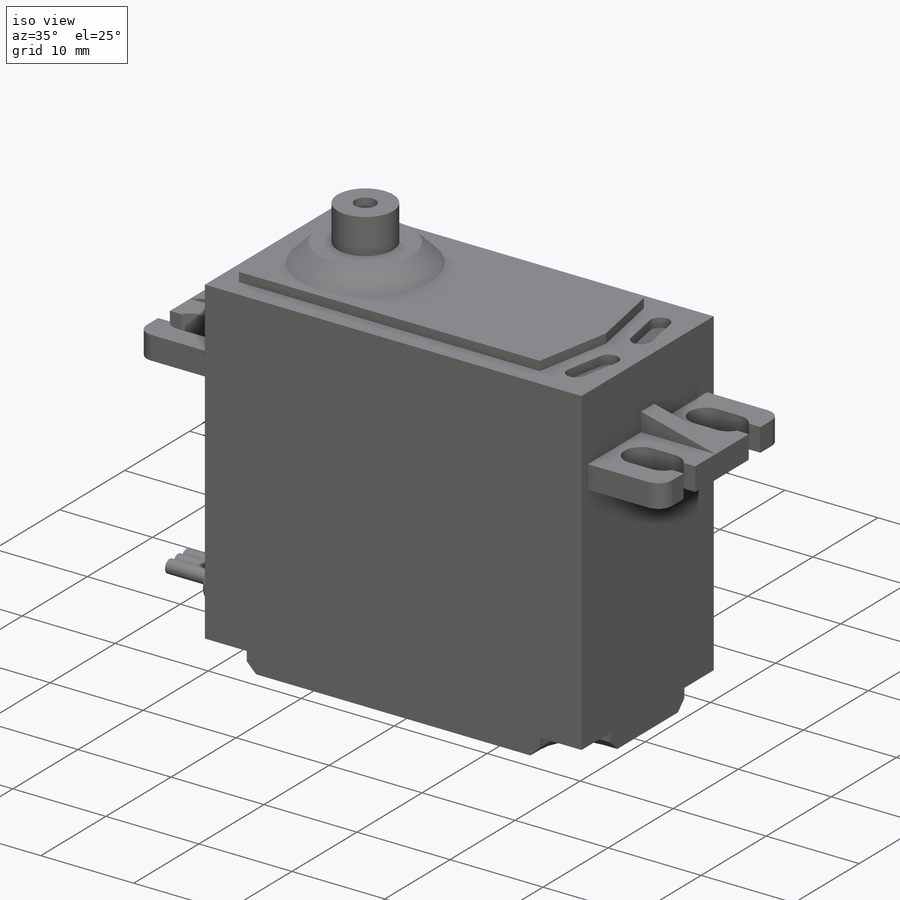
[diagram: iso view]
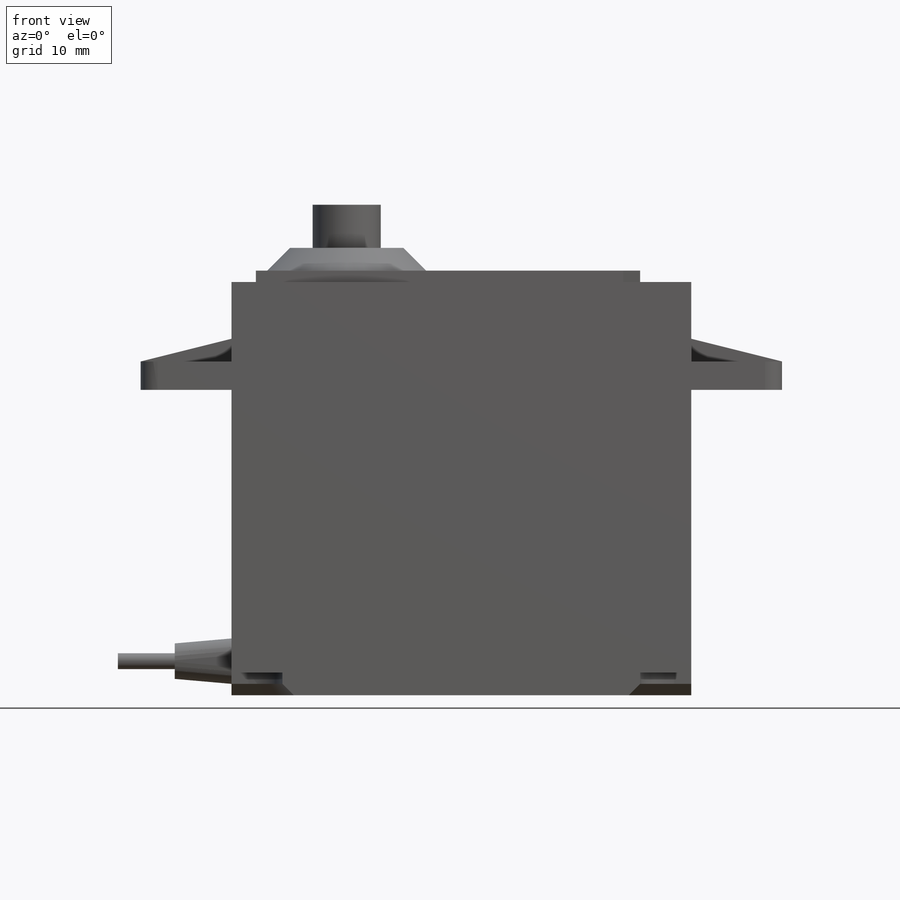
[diagram: front view]
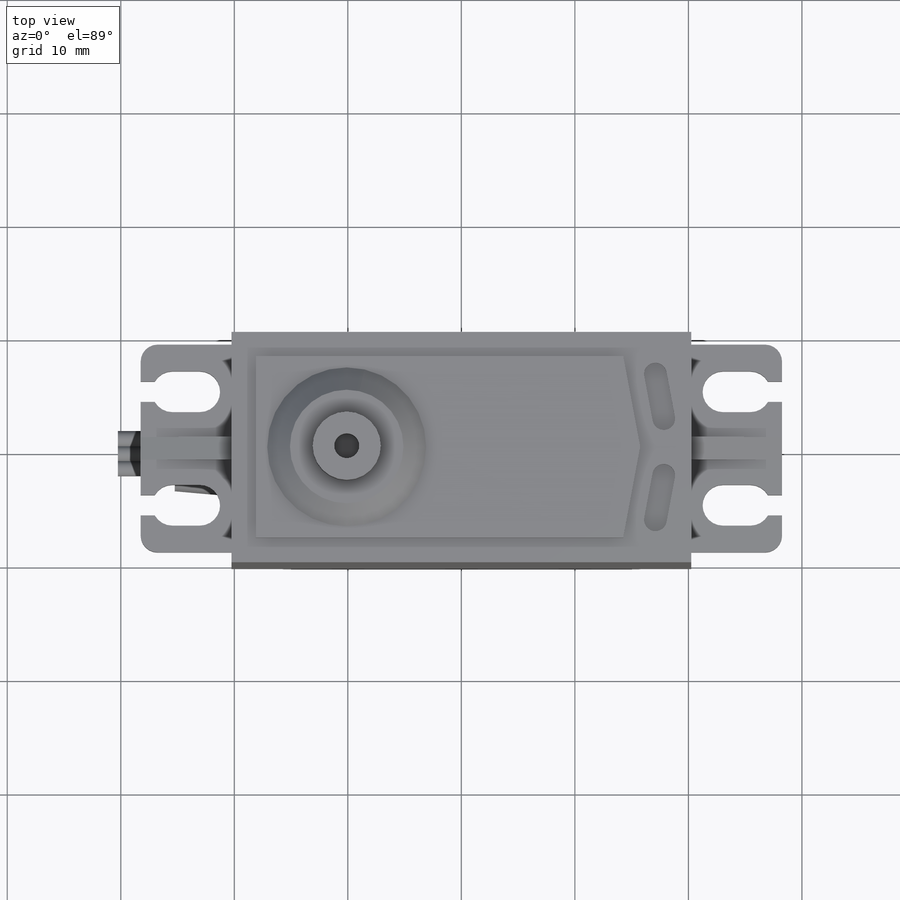
[diagram: top view]
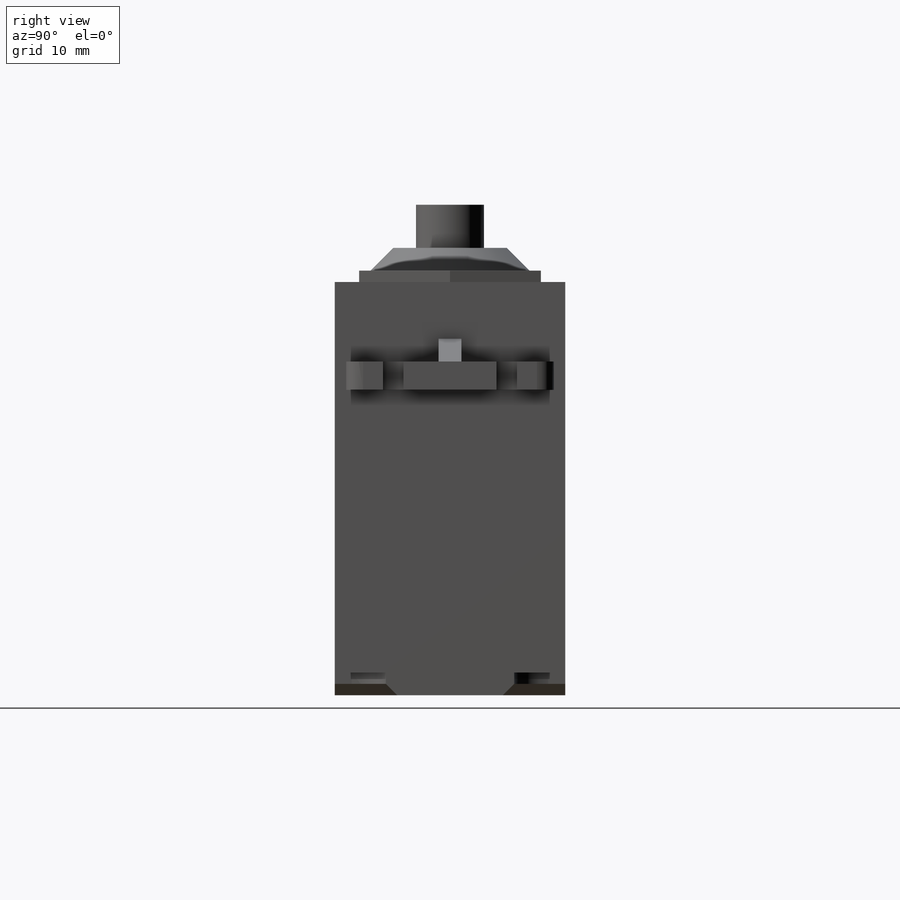
[diagram: right view]
SOLIDWORKS PART (.sldprt)
format: sldprt  version: not decoded by parser v0  size: 457,728 bytes
history: native  units: mm
features: sketch x12, extrude x7, mirror x5, cut_extrude x4, chamfer x2, fillet x2, material x1, plane x1 (+12 scaffold rows collapsed)
feature tree (46):
  scaffold x12  (default folders/planes/origin — collapsed)
  material  "Material <not specified>"
  sketch  "Sketch1"  dims[D1=40.5mm D2=20.3mm]
  extrude  "Boss-Extrude1"  Depth=37.4mm
  sketch  "Sketch2"  dims[c1.D1=~13.180097mm c1.D2=29.8mm c1.D3=10.7mm c2.D2=10.15mm c2.D3=10.1mm]
  extrude  "Boss-Extrude2"  Depth=2mm
  chamfer  "Chamfer1"  Distance=2mm Angle=45deg
  sketch  "Sketch3"  dims[D1=6.0mm D2=2.2mm]
  extrude  "Boss-Extrude3"  Depth=3.8mm
  plane  "Plane1"  Offset=8mm
  sketch  "Sketch4"  dims[D1=18.3mm D2=8.0mm]
  extrude  "Boss-Extrude4"  Depth=2.5mm
  sketch  "Sketch5"  dims[c1.D2=1.8mm c1.D1=3.6mm c2.D2=6.0mm c2.D3=1.0mm c2.D4=1.8mm c2.D5=5.0mm]
  cut_extrude  "Cut-Extrude1"  [1 undecoded]
  mirror  "Mirror2"
  sketch  "Sketch6"  dims[D1=2.0mm]
  extrude  "Boss-Extrude5"  Depth=2mm
  mirror  "Mirror3"
  fillet  "Fillet2"  Radius=1.5mm
  sketch  "Sketch7"  dims[D1=7.5mm D2=4.0mm D3=1.0mm]
  extrude  "Boss-Extrude6"  Depth=5mm
  sketch  "Sketch8"  dims[D1=1.4mm D2=2.0mm D3=2.0mm]
  extrude  "Boss-Extrude7"  Depth=5mm
  fillet  "Fillet3"  Radius=1.5mm
  sketch  "Sketch9"  dims[D3=3.0mm D1=4.5mm D2=4.5mm]
  cut_extrude  "Cut-Extrude2"  Depth=2mm
  chamfer  "Chamfer2"  Distance=1mm Angle=45deg
  mirror  "Mirror4"
  mirror  "Mirror5"
  sketch  "Sketch10"  dims[D1=16.0mm D2=4.5mm D3=3.0mm]
  cut_extrude  "Cut-Extrude3"  Depth=1mm
  sketch  "Sketch11"  dims[c1.D2=0.9mm c1.D1=2.0mm c2.D2=~6.331795mm c3.D2=6.0mm c3.D3=2.5mm]
  cut_extrude  "Cut-Extrude4"  Depth=1mm
  mirror  "Mirror6"
  sketch  "Sketch12"  dims[D1=10.0mm D2=49.0mm]
decode coverage: 26 of 32 modeling features carry decoded parameters
note: ~ marks probable driven/reference dimensions
note: 1 parameter value undecoded
note: suppression state not decoded; provenance and decode notes live in map.json
